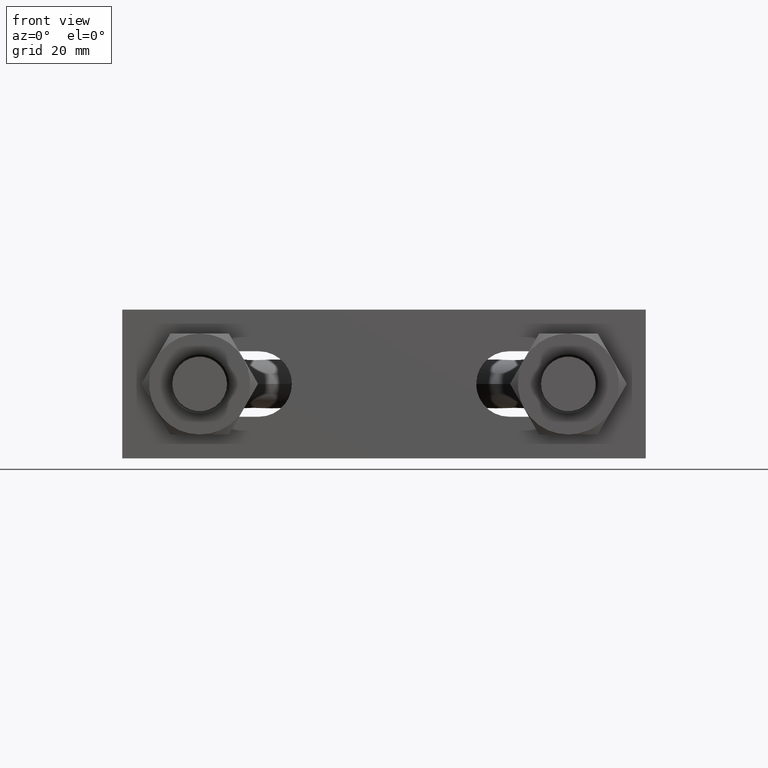
[diagram: clean part render]
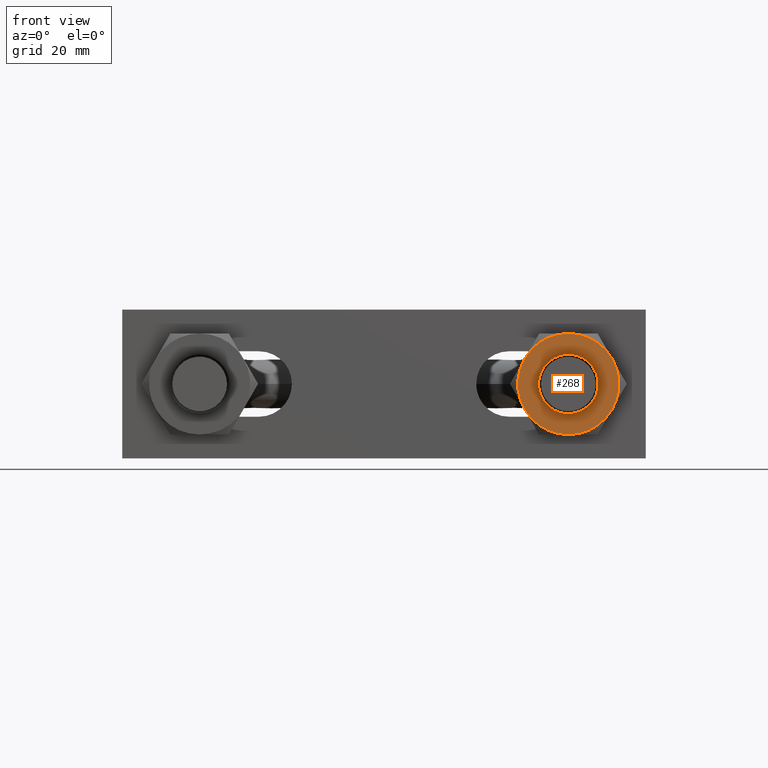
[diagram: same view with one face highlighted and labeled with its STEP entity id]
A machine part, front view. The second image highlights one B-rep face of the part: STEP entity #268.
In plain terms, the highlighted planar face has unit normal (0, 1, 0).
Its self-contained STEP definition (entity closure, byte-faithful):
#268 = ADVANCED_FACE( '', ( #403, #404 ), #405, .F. );
#403 = FACE_OUTER_BOUND( '', #713, .T. );
#404 = FACE_BOUND( '', #714, .T. );
#405 = PLANE( '', #715 );
#713 = EDGE_LOOP( '', ( #1122, #1123, #1124, #1125, #1126, #1127 ) );
#714 = EDGE_LOOP( '', ( #1128 ) );
#715 = AXIS2_PLACEMENT_3D( '', #1129, #1130, #1131 );
#1122 = ORIENTED_EDGE( '', *, *, #1398, .F. );
#1123 = ORIENTED_EDGE( '', *, *, #1399, .F. );
#1124 = ORIENTED_EDGE( '', *, *, #1400, .F. );
#1125 = ORIENTED_EDGE( '', *, *, #1401, .F. );
#1126 = ORIENTED_EDGE( '', *, *, #1396, .F. );
#1127 = ORIENTED_EDGE( '', *, *, #1402, .F. );
#1128 = ORIENTED_EDGE( '', *, *, #1403, .T. );
#1129 = CARTESIAN_POINT( '', ( 31.0000000000000, -14.1000000000000, 3.96143216892173E-065 ) );
#1130 = DIRECTION( '', ( 6.12303176911189E-017, 1.00000000000000, 0.000000000000000 ) );
#1131 = DIRECTION( '', ( 3.74915180455534E-033, -2.29561756065155E-049, -1.00000000000000 ) );
#1396 = EDGE_CURVE( '', #1627, #1629, #1630, .T. );
#1398 = EDGE_CURVE( '', #1632, #1633, #1634, .T. );
#1399 = EDGE_CURVE( '', #1635, #1632, #1636, .T. );
#1400 = EDGE_CURVE( '', #1637, #1635, #1638, .T. );
#1401 = EDGE_CURVE( '', #1629, #1637, #1639, .T. );
#1402 = EDGE_CURVE( '', #1633, #1627, #1640, .T. );
#1403 = EDGE_CURVE( '', #1641, #1641, #1642, .T. );
#1627 = VERTEX_POINT( '', #2027 );
#1629 = VERTEX_POINT( '', #2034 );
#1630 = CIRCLE( '', #2035, 8.50000000000000 );
#1632 = VERTEX_POINT( '', #2044 );
#1633 = VERTEX_POINT( '', #2045 );
#1634 = CIRCLE( '', #2046, 8.50000000000000 );
#1635 = VERTEX_POINT( '', #2047 );
#1636 = CIRCLE( '', #2048, 8.50000000000000 );
#1637 = VERTEX_POINT( '', #2049 );
#1638 = CIRCLE( '', #2050, 8.50000000000000 );
#1639 = CIRCLE( '', #2051, 8.50000000000000 );
#1640 = CIRCLE( '', #2052, 8.50000000000000 );
#1641 = VERTEX_POINT( '', #2053 );
#1642 = CIRCLE( '', #2054, 5.00000000000000 );
#2027 = CARTESIAN_POINT( '', ( 31.0000000000000, -14.1000000000000, 8.50000000000000 ) );
#2034 = CARTESIAN_POINT( '', ( 38.3612159321677, -14.1000000000000, 4.25000000000000 ) );
#2035 = AXIS2_PLACEMENT_3D( '', #2375, #2376, #2377 );
#2044 = CARTESIAN_POINT( '', ( 23.6387840678323, -14.1000000000000, -4.25000000000000 ) );
#2045 = CARTESIAN_POINT( '', ( 23.6387840678323, -14.1000000000000, 4.25000000000000 ) );
#2046 = AXIS2_PLACEMENT_3D( '', #2378, #2379, #2380 );
#2047 = CARTESIAN_POINT( '', ( 31.0000000000000, -14.1000000000000, -8.50000000000000 ) );
#2048 = AXIS2_PLACEMENT_3D( '', #2381, #2382, #2383 );
#2049 = CARTESIAN_POINT( '', ( 38.3612159321677, -14.1000000000000, -4.25000000000000 ) );
#2050 = AXIS2_PLACEMENT_3D( '', #2384, #2385, #2386 );
#2051 = AXIS2_PLACEMENT_3D( '', #2387, #2388, #2389 );
#2052 = AXIS2_PLACEMENT_3D( '', #2390, #2391, #2392 );
#2053 = CARTESIAN_POINT( '', ( 31.0000000000000, -14.1000000000000, -5.00000000000000 ) );
#2054 = AXIS2_PLACEMENT_3D( '', #2393, #2394, #2395 );
#2375 = CARTESIAN_POINT( '', ( 31.0000000000000, -14.1000000000000, 3.96143216892173E-065 ) );
#2376 = DIRECTION( '', ( 6.12303176911189E-017, 1.00000000000000, 6.72903901152805E-065 ) );
#2377 = DIRECTION( '', ( 3.74915180455534E-033, -2.29561756065155E-049, -1.00000000000000 ) );
#2378 = CARTESIAN_POINT( '', ( 31.0000000000000, -14.1000000000000, 3.96143216892173E-065 ) );
#2379 = DIRECTION( '', ( 6.12303176911189E-017, 1.00000000000000, 6.72903901152805E-065 ) );
#2380 = DIRECTION( '', ( 3.74915180455534E-033, -2.29561756065155E-049, -1.00000000000000 ) );
#2381 = CARTESIAN_POINT( '', ( 31.0000000000000, -14.1000000000000, 3.96143216892173E-065 ) );
#2382 = DIRECTION( '', ( 6.12303176911189E-017, 1.00000000000000, 6.72903901152805E-065 ) );
#2383 = DIRECTION( '', ( 3.74915180455534E-033, -2.29561756065155E-049, -1.00000000000000 ) );
#2384 = CARTESIAN_POINT( '', ( 31.0000000000000, -14.1000000000000, 3.96143216892173E-065 ) );
#2385 = DIRECTION( '', ( 6.12303176911189E-017, 1.00000000000000, 6.72903901152805E-065 ) );
#2386 = DIRECTION( '', ( 3.74915180455534E-033, -2.29561756065155E-049, -1.00000000000000 ) );
#2387 = CARTESIAN_POINT( '', ( 31.0000000000000, -14.1000000000000, 3.96143216892173E-065 ) );
#2388 = DIRECTION( '', ( 6.12303176911189E-017, 1.00000000000000, 6.72903901152805E-065 ) );
#2389 = DIRECTION( '', ( 3.74915180455534E-033, -2.29561756065155E-049, -1.00000000000000 ) );
#2390 = CARTESIAN_POINT( '', ( 31.0000000000000, -14.1000000000000, 3.96143216892173E-065 ) );
#2391 = DIRECTION( '', ( 6.12303176911189E-017, 1.00000000000000, 6.72903901152805E-065 ) );
#2392 = DIRECTION( '', ( 3.74915180455534E-033, -2.29561756065155E-049, -1.00000000000000 ) );
#2393 = CARTESIAN_POINT( '', ( 31.0000000000000, -14.1000000000000, 3.96143216892173E-065 ) );
#2394 = DIRECTION( '', ( 6.12303176911189E-017, 1.00000000000000, 4.86173068582902E-065 ) );
#2395 = DIRECTION( '', ( 3.74915180455535E-033, -2.29561756065155E-049, -1.00000000000000 ) );